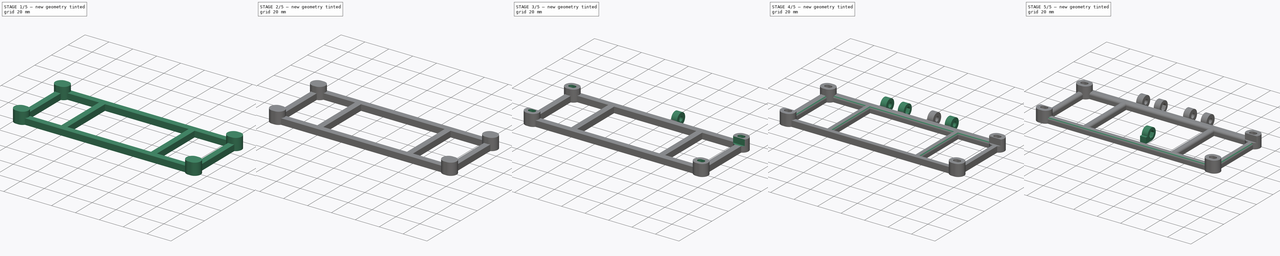
[diagram: build sequence overview — one tinted view per stage of 5, left to right]
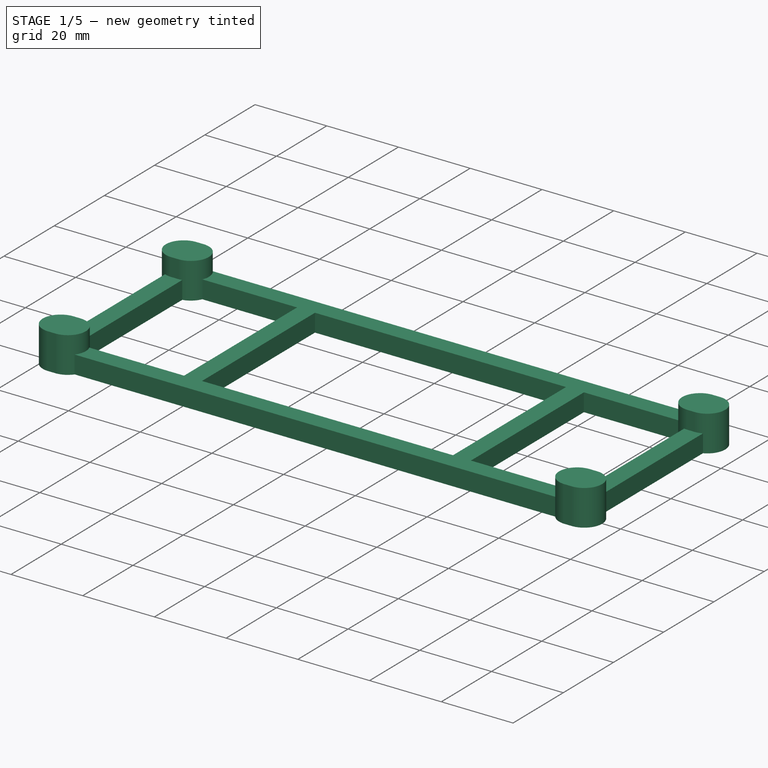
[diagram: stage 1 of 5 — iso view after this stage's code; geometry added in this stage tinted green]
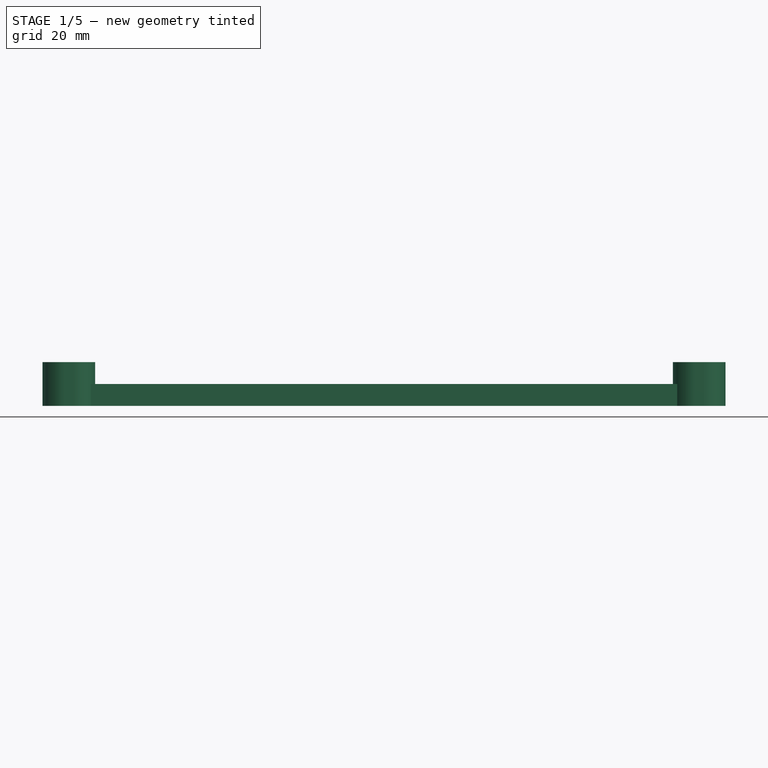
[diagram: stage 1 of 5 — front view after this stage's code; geometry added in this stage tinted green]
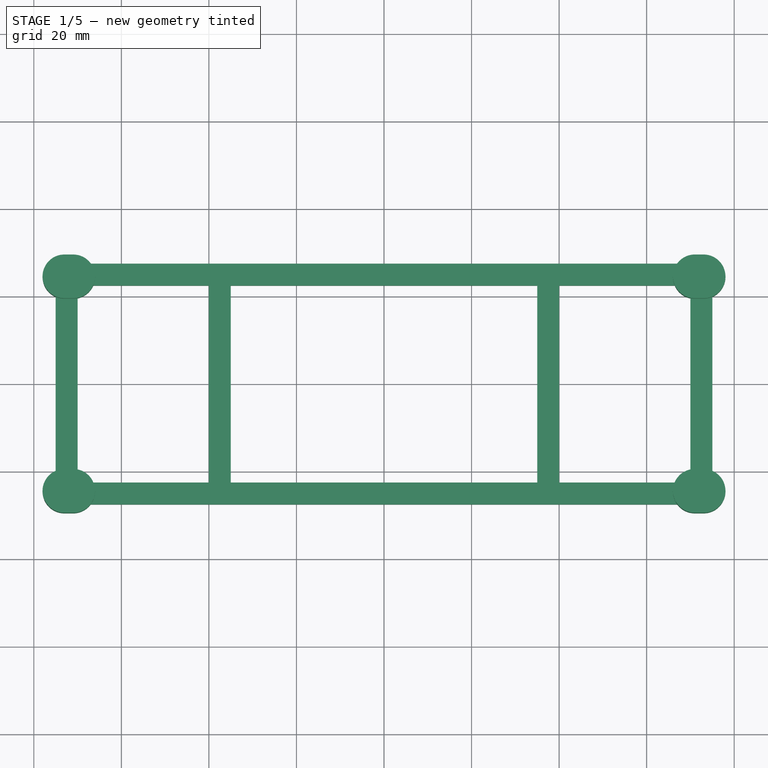
[diagram: stage 1 of 5 — top view after this stage's code; geometry added in this stage tinted green]
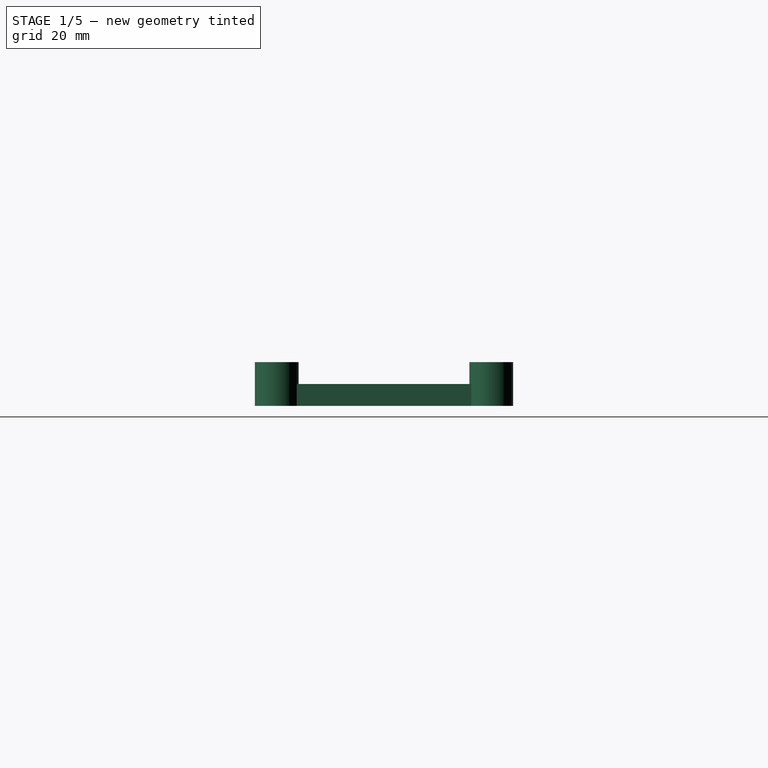
[diagram: stage 1 of 5 — right view after this stage's code; geometry added in this stage tinted green]
FCSTD DOCUMENT  (FreeCAD 0.14R3702 (Git))
Label: lcd-holder
License: CC-BY 3.0
LicenseURL: http://creativecommons.org/licenses/by/3.0/
objects: Sketcher::SketchObject×9, Part::Feature×7, PartDesign::Pocket×6, Part::MultiFuse×4, PartDesign::Pad×3, PartDesign::Mirrored×2, Part::Fillet×2, Part::Mirroring×1
note: 43 computed .brp shape members not serialized (recipe doc carries the construction recipe); baked Part::Feature solids carry a one-line shape summary decoded from their .brp

FEATURE [Sketcher::SketchObject] Sketch  label="main-body-sketch"
  sketch-geometry (4):
    g0: LineSegment StartX=-75 StartY=27.5 StartZ=0 EndX=75 EndY=27.5 EndZ=0
    g1: LineSegment StartX=75 StartY=27.5 StartZ=0 EndX=75 EndY=-27.5 EndZ=0
    g2: LineSegment StartX=75 StartY=-27.5 StartZ=0 EndX=-75 EndY=-27.5 EndZ=0
    g3: LineSegment StartX=-75 StartY=-27.5 StartZ=0 EndX=-75 EndY=27.5 EndZ=0
  constraints (11):
    c: Coincident(g0,g1)
    c: Coincident(g1,g2)
    c: Coincident(g2,g3)
    c: Coincident(g3,g0)
    c: Horizontal(g0)
    c: Horizontal(g2)
    c: Vertical(g1)
    c: Vertical(g3)
    c: DistanceX(g0) = 150
    c: DistanceY(g3) = 55
    c: Symmetric(g0,g1,g-1)
FEATURE [PartDesign::Pad] Pad  label="main-body"
  Length = 5
  Length2 = 100
  Sketch = -> Sketch
  Type = 0
FEATURE [Sketcher::SketchObject] Sketch001  label="corner-body-sketch"
  Placement = pos=(-73,24.5,0) rot=(0,0,1;0rad)
  sketch-geometry (4):
    g0: ArcOfCircle CenterX=0 CenterY=0 CenterZ=0 NormalX=0 NormalY=0 NormalZ=1 Radius=5 StartAngle=1.57079 EndAngle=4.71239
    g1: ArcOfCircle CenterX=2 CenterY=0 CenterZ=0 NormalX=0 NormalY=0 NormalZ=1 Radius=5 StartAngle=4.71239 EndAngle=7.85398
    g2: LineSegment StartX=2.23301e-05 StartY=-5 StartZ=0 EndX=2.00001 EndY=-5 EndZ=0
    g3: LineSegment StartX=3.06586e-05 StartY=5 StartZ=0 EndX=2.00002 EndY=5 EndZ=0
  constraints (13):
    c: Tangent(g0,g2)
    c: Tangent(g0,g3)
    c: Tangent(g1,g2)
    c: Tangent(g1,g3)
    c: Coincident(g0,g3)
    c: Coincident(g0,g2)
    c: Coincident(g2,g1)
    c: Coincident(g3,g1)
    c: Horizontal(g2)
    c: Equal(g0,g1)
    c: Radius(g0) = 5
    c: DistanceX(g0,g1) = 2
    c: Coincident(g0,g-1)
FEATURE [PartDesign::Pad] Pad001  label="corner-body-1"
  Length = 10
  Length2 = 100
  Placement = pos=(-73,24.5,0) rot=(0,0,1;0rad)
  Sketch = -> Sketch001
  Type = 0
FEATURE [Part::Feature] Pad001001  label="corner-body-002"
  Placement = pos=(71,24.5,0) rot=(0,0,1;0rad)
  shape: bbox 12 x 10 x 10 mm, 6 faces (baked)
FEATURE [Part::Feature] Pad001002  label="corner-body-003"
  Placement = pos=(71,-24.5,0) rot=(0,0,1;0rad)
  shape: bbox 12 x 10 x 10 mm, 6 faces (baked)
FEATURE [Part::Feature] Pad001003  label="corner-body-004"
  Placement = pos=(-73,-24.5,0) rot=(0,0,1;0rad)
  shape: bbox 12 x 10 x 10 mm, 6 faces (baked)
FEATURE [Part::MultiFuse] Fusion  label="corners-body"
  Shapes = -> [Pad001,Pad001002,Pad001001,Pad001003]
FEATURE [Sketcher::SketchObject] Sketch002  label="cutout-1-sketch"
  Placement = pos=(0,0,5) rot=(0,0,1;0rad)
  Support = -> Pad [Face6]
  sketch-geometry (12):
    g0: LineSegment StartX=-70 StartY=22.5 StartZ=0 EndX=-40 EndY=22.5 EndZ=0
    g1: LineSegment StartX=-40 StartY=22.5 StartZ=0 EndX=-40 EndY=-22.5 EndZ=0
    g2: LineSegment StartX=-40 StartY=-22.5 StartZ=0 EndX=-70 EndY=-22.5 EndZ=0
    g3: LineSegment StartX=-70 StartY=-22.5 StartZ=0 EndX=-70 EndY=22.5 EndZ=0
    g4: LineSegment StartX=-35 StartY=22.5 StartZ=0 EndX=35 EndY=22.5 EndZ=0
    g5: LineSegment StartX=35 StartY=22.5 StartZ=0 EndX=35 EndY=-22.5 EndZ=0
    g6: LineSegment StartX=35 StartY=-22.5 StartZ=0 EndX=-35 EndY=-22.5 EndZ=0
    g7: LineSegment StartX=-35 StartY=-22.5 StartZ=0 EndX=-35 EndY=22.5 EndZ=0
    g8: LineSegment StartX=40 StartY=22.5 StartZ=0 EndX=70 EndY=22.5 EndZ=0
    g9: LineSegment StartX=70 StartY=22.5 StartZ=0 EndX=70 EndY=-22.5 EndZ=0
    g10: LineSegment StartX=70 StartY=-22.5 StartZ=0 EndX=40 EndY=-22.5 EndZ=0
    g11: LineSegment StartX=40 StartY=-22.5 StartZ=0 EndX=40 EndY=22.5 EndZ=0
  constraints (34):
    c: Coincident(g0,g1)
    c: Coincident(g1,g2)
    c: Coincident(g2,g3)
    c: Coincident(g3,g0)
    c: Horizontal(g0)
    c: Horizontal(g2)
    c: Vertical(g1)
    c: Vertical(g3)
    c: Symmetric(g0,g2,g-1)
    c: Coincident(g4,g5)
    c: Coincident(g5,g6)
    c: Coincident(g6,g7)
    c: Coincident(g7,g4)
    c: Horizontal(g6)
    c: Vertical(g5)
    c: Vertical(g7)
    c: Coincident(g8,g9)
    c: Coincident(g9,g10)
    c: Coincident(g10,g11)
    c: Coincident(g11,g8)
    c: Horizontal(g8)
    c: Horizontal(g10)
    c: Vertical(g9)
    c: Vertical(g11)
    c: PointOnObject(g0,g4)
    c: Symmetric(g4,g6,g-1)
    c: Symmetric(g4,g4,g-2)
    c: Symmetric(g8,g10,g-1)
    c: Symmetric(g0,g8,g-2)
    c: Symmetric(g0,g8,g-2)
    c: DistanceX(g0) = 30
    c: DistanceY(g3) = 45
    c: DistanceX(g4) = 70
    c: DistanceX(g1,g6) = 5
FEATURE [PartDesign::Pocket] Pocket  label="cutout-1"
  Length = 5
  Sketch = -> Sketch002
  Type = 1
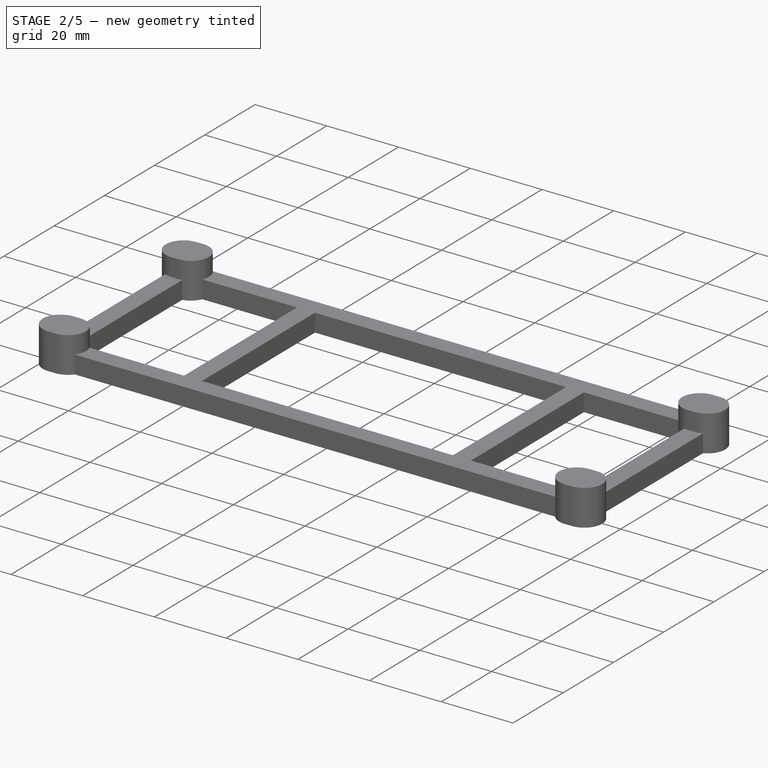
[diagram: stage 2 of 5 — iso view after this stage's code; geometry added in this stage tinted green]
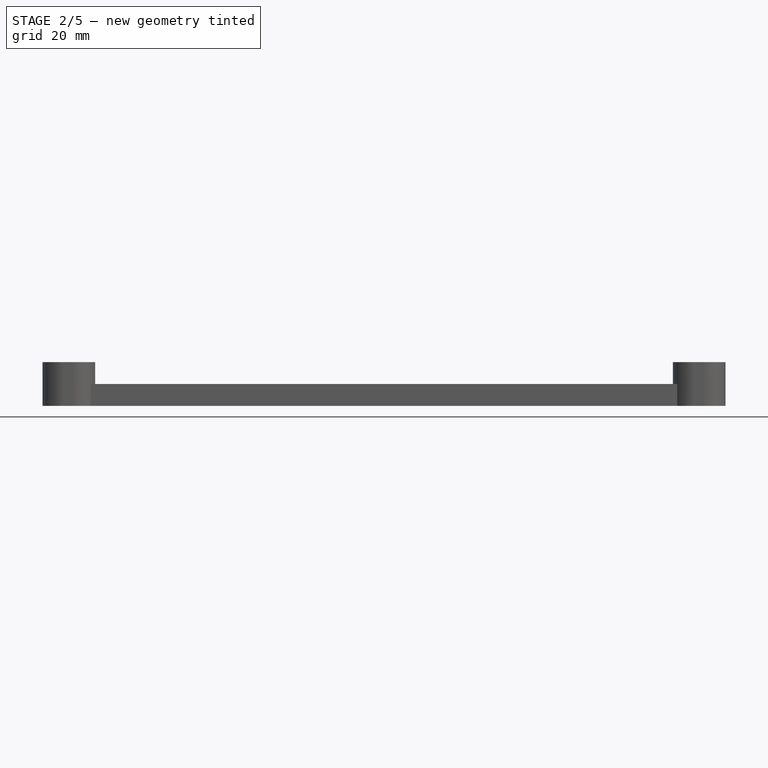
[diagram: stage 2 of 5 — front view after this stage's code; geometry added in this stage tinted green]
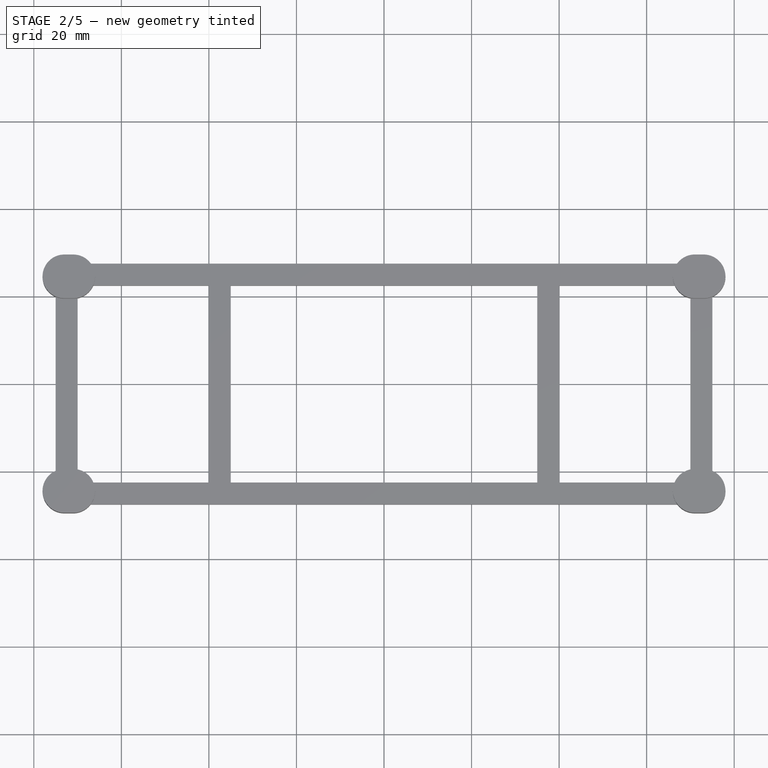
[diagram: stage 2 of 5 — top view after this stage's code; geometry added in this stage tinted green]
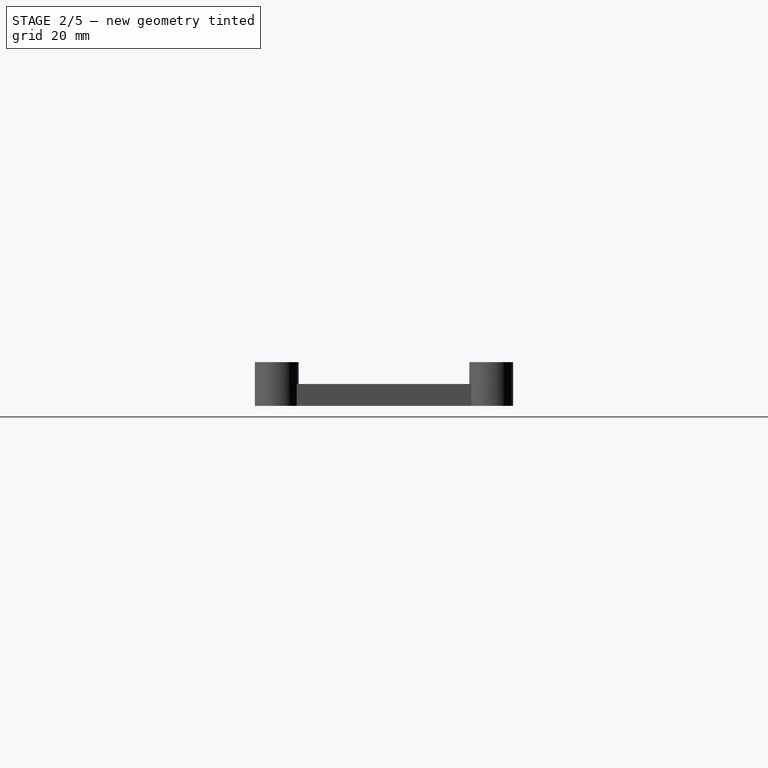
[diagram: stage 2 of 5 — right view after this stage's code; geometry added in this stage tinted green]
FEATURE [Part::MultiFuse] Fusion001  label="main-body-2"
  Shapes = -> [Pocket,Fusion]
FEATURE [Sketcher::SketchObject] Sketch003  label="nut-hole-1-sketch"
  Placement = pos=(0,0,0) rot=(1,0,0;3.14159rad)
  Support = -> Fusion001 [Face40]
  sketch-geometry (22):
    g0: LineSegment [constr] StartX=72 StartY=27.55 StartZ=0 EndX=72 EndY=21.45 EndZ=0
    g1: LineSegment StartX=71 StartY=27.55 StartZ=0 EndX=73 EndY=27.55 EndZ=0
    g2: LineSegment [constr] StartX=68.3153 StartY=24.5 StartZ=0 EndX=75.6847 EndY=24.5 EndZ=0
    g3: LineSegment StartX=68.3153 StartY=26 StartZ=0 EndX=68.3153 EndY=23 EndZ=0
    g4: LineSegment StartX=68.3153 StartY=26 StartZ=0 EndX=71 EndY=27.55 EndZ=0
    g5: GeomPoint [constr] X=72 Y=24.5 Z=0
    g6: LineSegment StartX=71 StartY=21.45 StartZ=0 EndX=73 EndY=21.45 EndZ=0
    g7: LineSegment StartX=68.3153 StartY=23 StartZ=0 EndX=71 EndY=21.45 EndZ=0
    g8: LineSegment StartX=75.6847 StartY=26 StartZ=0 EndX=75.6847 EndY=23 EndZ=0
    g9: LineSegment StartX=73 StartY=27.55 StartZ=0 EndX=75.6847 EndY=26 EndZ=0
    g10: LineSegment StartX=73 StartY=21.45 StartZ=0 EndX=75.6847 EndY=23 EndZ=0
    g11: LineSegment StartX=68.3153 StartY=-23 StartZ=0 EndX=71 EndY=-21.45 EndZ=0
    g12: LineSegment StartX=71 StartY=-21.45 StartZ=0 EndX=73 EndY=-21.45 EndZ=0
    g13: LineSegment StartX=73 StartY=-21.45 StartZ=0 EndX=75.6847 EndY=-23 EndZ=0
    g14: LineSegment StartX=75.6847 StartY=-23 StartZ=0 EndX=75.6847 EndY=-26 EndZ=0
    g15: LineSegment StartX=75.6847 StartY=-26 StartZ=0 EndX=73 EndY=-27.55 EndZ=0
    g16: LineSegment StartX=73 StartY=-27.55 StartZ=0 EndX=71 EndY=-27.55 EndZ=0
    g17: LineSegment StartX=71 StartY=-27.55 StartZ=0 EndX=68.3153 EndY=-26 EndZ=0
    g18: LineSegment StartX=68.3153 StartY=-26 StartZ=0 EndX=68.3153 EndY=-23 EndZ=0
    g19: LineSegment [constr] StartX=72 StartY=-21.45 StartZ=0 EndX=72 EndY=-27.55 EndZ=0
    g20: LineSegment [constr] StartX=68.3153 StartY=-24.5 StartZ=0 EndX=75.6847 EndY=-24.5 EndZ=0
    g21: GeomPoint [constr] X=72 Y=-24.5 Z=0
  constraints (62):
    c: Horizontal(g1)
    c: PointOnObject(g0,g1)
    c: Symmetric(g1,g1,g0)
    c: Symmetric(g2,g2,g0)
    c: PointOnObject(g2,g3)
    c: Vertical(g3)
    c: Coincident(g4,g3)
    c: Coincident(g4,g1)
    c: Angle(g2,g4) = 0.523599
    c: Symmetric(g3,g3,g2)
    c: PointOnObject(g5,g0)
    c: PointOnObject(g5,g2)
    c: DistanceX(g-1,g5) = 72
    c: DistanceY(g-1,g5) = 24.5
    c: DistanceY(g3) = -3
    c: DistanceX(g1) = 2
    c: PointOnObject(g0,g6)
    c: Symmetric(g0,g0,g2)
    c: Symmetric(g6,g1,g2)
    c: Coincident(g7,g3)
    c: Coincident(g7,g6)
    c: PointOnObject(g2,g8)
    c: Vertical(g8)
    c: Symmetric(g8,g3,g0)
    c: Coincident(g9,g1)
    c: Coincident(g9,g8)
    c: Symmetric(g6,g1,g2)
    c: Symmetric(g8,g3,g0)
    c: Coincident(g10,g8)
    c: Coincident(g6,g10)
    c: DistanceY(g0) = -6.1
    c: Coincident(g11,g12)
    c: Coincident(g12,g13)
    c: Coincident(g13,g14)
    c: Coincident(g14,g15)
    c: Coincident(g15,g16)
    c: Coincident(g16,g17)
    c: Coincident(g17,g18)
    c: Coincident(g18,g11)
    c: Horizontal(g12)
    c: Horizontal(g16)
    c: Vertical(g14)
    c: Vertical(g18)
    c: Equal(g18,g14)
    c: Equal(g12,g16)
    c: Equal(g16,g6)
    c: Equal(g18,g8)
    c: Parallel(g11,g15)
    c: Parallel(g15,g10)
    c: Parallel(g17,g13)
    c: Parallel(g13,g7)
    c: PointOnObject(g13,g8)
    c: PointOnObject(g11,g3)
    c: PointOnObject(g19,g12)
    c: Symmetric(g11,g12,g19)
    c: PointOnObject(g19,g16)
    c: PointOnObject(g20,g18)
    c: PointOnObject(g20,g14)
    c: Symmetric(g11,g17,g20)
    c: PointOnObject(g21,g19)
    c: PointOnObject(g21,g20)
    c: Symmetric(g21,g5,g-1)
FEATURE [PartDesign::Pocket] Pocket001  label="nut-hole-1"
  Length = 5
  Sketch = -> Sketch003
  Type = 0
FEATURE [PartDesign::Mirrored] Mirrored
  MirrorPlane = -> Sketch003 [V_Axis]
  Originals = -> [Pocket001]
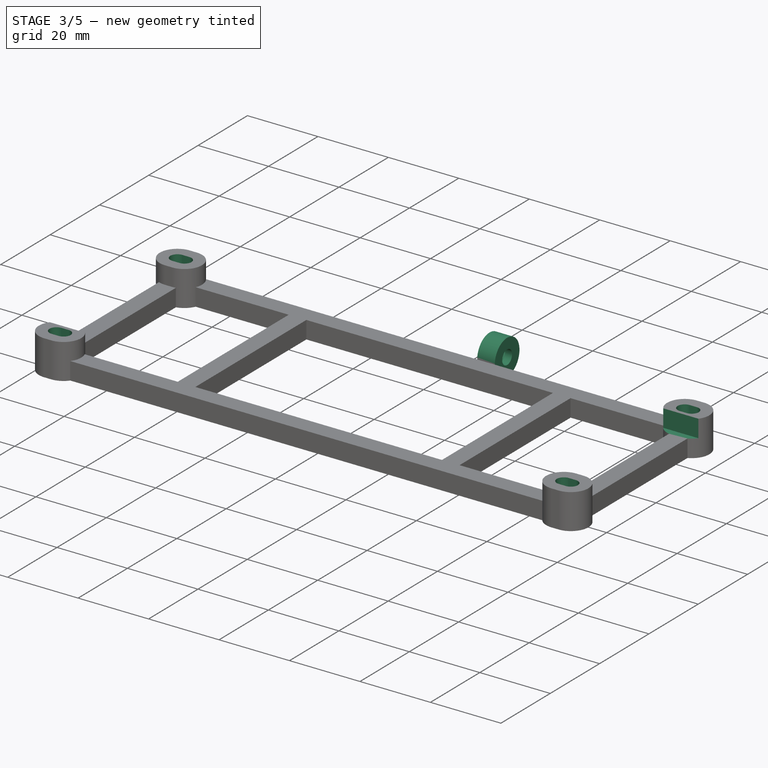
[diagram: stage 3 of 5 — iso view after this stage's code; geometry added in this stage tinted green]
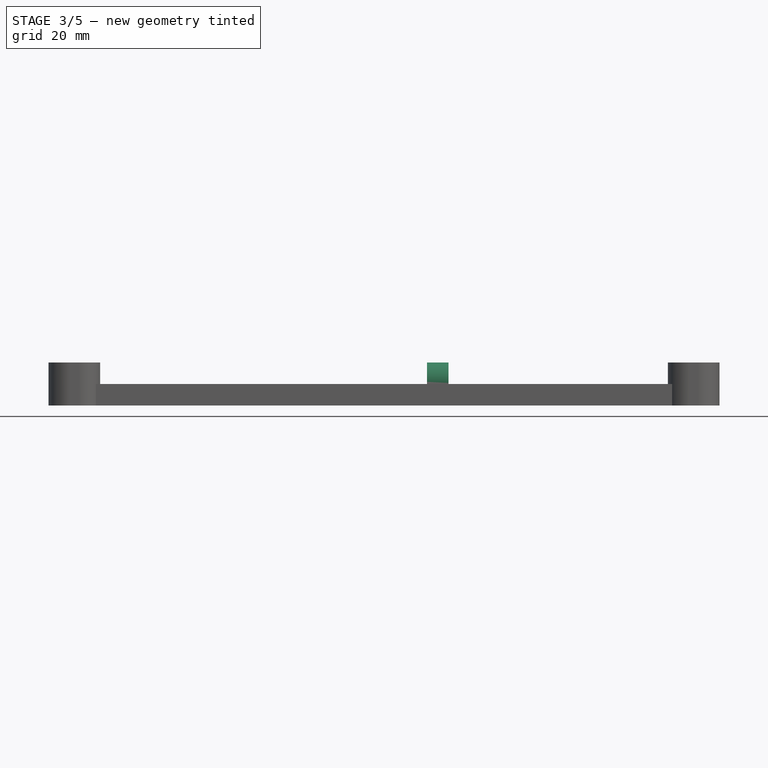
[diagram: stage 3 of 5 — front view after this stage's code; geometry added in this stage tinted green]
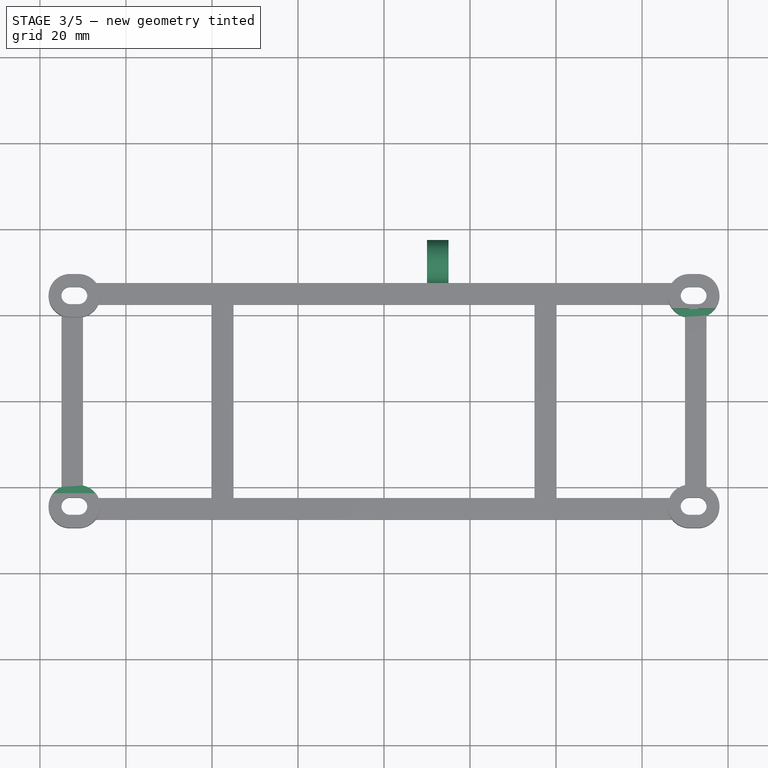
[diagram: stage 3 of 5 — top view after this stage's code; geometry added in this stage tinted green]
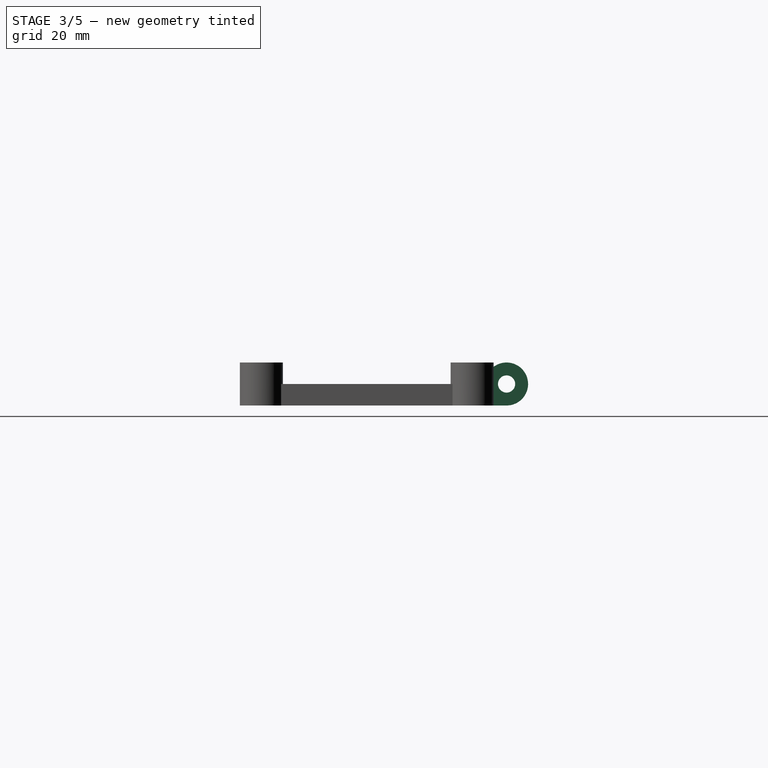
[diagram: stage 3 of 5 — right view after this stage's code; geometry added in this stage tinted green]
FEATURE [Sketcher::SketchObject] Sketch004  label="oval-drills-sketch"
  Placement = pos=(0,0,10) rot=(0,0,1;0rad)
  Support = -> Mirrored [Face65]
  sketch-geometry (8):
    g0: ArcOfCircle CenterX=-73 CenterY=24.5 CenterZ=0 NormalX=0 NormalY=0 NormalZ=1 Radius=2 StartAngle=1.5708 EndAngle=4.71239
    g1: ArcOfCircle CenterX=-71 CenterY=24.5 CenterZ=0 NormalX=0 NormalY=0 NormalZ=1 Radius=2 StartAngle=4.71239 EndAngle=7.85398
    g2: LineSegment StartX=-73 StartY=22.5 StartZ=0 EndX=-71 EndY=22.5 EndZ=0
    g3: LineSegment StartX=-73 StartY=26.5 StartZ=0 EndX=-71 EndY=26.5 EndZ=0
    g4: ArcOfCircle CenterX=-73 CenterY=-24.5 CenterZ=0 NormalX=0 NormalY=0 NormalZ=1 Radius=2 StartAngle=1.57079 EndAngle=4.71239
    g5: ArcOfCircle CenterX=-71 CenterY=-24.5 CenterZ=0 NormalX=0 NormalY=0 NormalZ=1 Radius=2 StartAngle=4.71239 EndAngle=7.85398
    g6: LineSegment StartX=-73 StartY=-26.5 StartZ=0 EndX=-71 EndY=-26.5 EndZ=0
    g7: LineSegment StartX=-73 StartY=-22.5 StartZ=0 EndX=-71 EndY=-22.5 EndZ=0
  constraints (27):
    c: Tangent(g0,g2)
    c: Tangent(g0,g3)
    c: Tangent(g1,g2)
    c: Tangent(g1,g3)
    c: Coincident(g0,g3)
    c: Coincident(g0,g2)
    c: Coincident(g2,g1)
    c: Coincident(g3,g1)
    c: Horizontal(g2)
    c: Equal(g0,g1)
    c: DistanceX(g-1,g0) = -73
    c: DistanceY(g-1,g0) = 24.5
    c: Radius(g0) = 2
    c: DistanceX(g3) = 2
    c: Tangent(g4,g6)
    c: Tangent(g4,g7)
    c: Tangent(g5,g6)
    c: Tangent(g5,g7)
    c: Coincident(g4,g7)
    c: Coincident(g4,g6)
    c: Coincident(g6,g5)
    c: Coincident(g7,g5)
    c: Horizontal(g6)
    c: Equal(g4,g5)
    c: Equal(g7,g2)
    c: Equal(g4,g0)
    c: Symmetric(g4,g0,g-1)
FEATURE [PartDesign::Pocket] Pocket002  label="oval-drills"
  Length = 5
  Sketch = -> Sketch004
  Type = 1
FEATURE [PartDesign::Mirrored] Mirrored001
  MirrorPlane = -> Sketch004 [V_Axis]
  Originals = -> [Pocket002]
FEATURE [Part::Feature] Pocket003004  label="ear-with-1"
  Placement = pos=(-12.5,32.5,5) rot=(0.57735,0.57735,0.57735;2.0944rad)
  shape: bbox 5 x 12 x 10 mm, 14 faces (baked)
FEATURE [Part::Mirroring] Part__Mirroring  label="ear-with-1 (Mirror #1)"
  Base = (0,0,0)
  Normal = (1,0,0)
  Source = -> Pocket003004
FEATURE [Sketcher::SketchObject] Sketch008  label="cutout-2-sketch"
  ExternalGeometry = -> [Mirrored001]
  Placement = pos=(0,0,10) rot=(0,0,1;0rad)
  Support = -> Mirrored001 [Face70]
  sketch-geometry (8):
    g0: LineSegment StartX=-80 StartY=-16.5 StartZ=0 EndX=-65 EndY=-16.5 EndZ=0
    g1: LineSegment StartX=-65 StartY=-16.5 StartZ=0 EndX=-65 EndY=-21.5 EndZ=0
    g2: LineSegment StartX=-65 StartY=-21.5 StartZ=0 EndX=-80 EndY=-21.5 EndZ=0
    g3: LineSegment StartX=-80 StartY=-21.5 StartZ=0 EndX=-80 EndY=-16.5 EndZ=0
    g4: LineSegment StartX=65 StartY=21.5 StartZ=0 EndX=80 EndY=21.5 EndZ=0
    g5: LineSegment StartX=80 StartY=21.5 StartZ=0 EndX=80 EndY=16.5 EndZ=0
    g6: LineSegment StartX=80 StartY=16.5 StartZ=0 EndX=65 EndY=16.5 EndZ=0
    g7: LineSegment StartX=65 StartY=16.5 StartZ=0 EndX=65 EndY=21.5 EndZ=0
  constraints (24):
    c: Coincident(g0,g1)
    c: Coincident(g1,g2)
    c: Coincident(g2,g3)
    c: Coincident(g3,g0)
    c: Horizontal(g0)
    c: Horizontal(g2)
    c: Vertical(g1)
    c: Vertical(g3)
    c: DistanceX(g2) = -15
    c: DistanceY(g3) = 5
    c: DistanceX(g-3,g2) = -7
    c: Coincident(g4,g5)
    c: Coincident(g5,g6)
    c: Coincident(g6,g7)
    c: Coincident(g7,g4)
    c: Horizontal(g4)
    c: Horizontal(g6)
    c: Vertical(g5)
    c: Vertical(g7)
    c: Equal(g1,g7)
    c: Equal(g6,g0)
    c: DistanceX(g-4,g4) = 7
    c: DistanceY(g-3,g1) = 1
    c: DistanceY(g-4,g4) = -1
FEATURE [PartDesign::Pocket] Pocket003005  label="cutout-2"
  Length = 5
  Sketch = -> Sketch008
  Type = 0
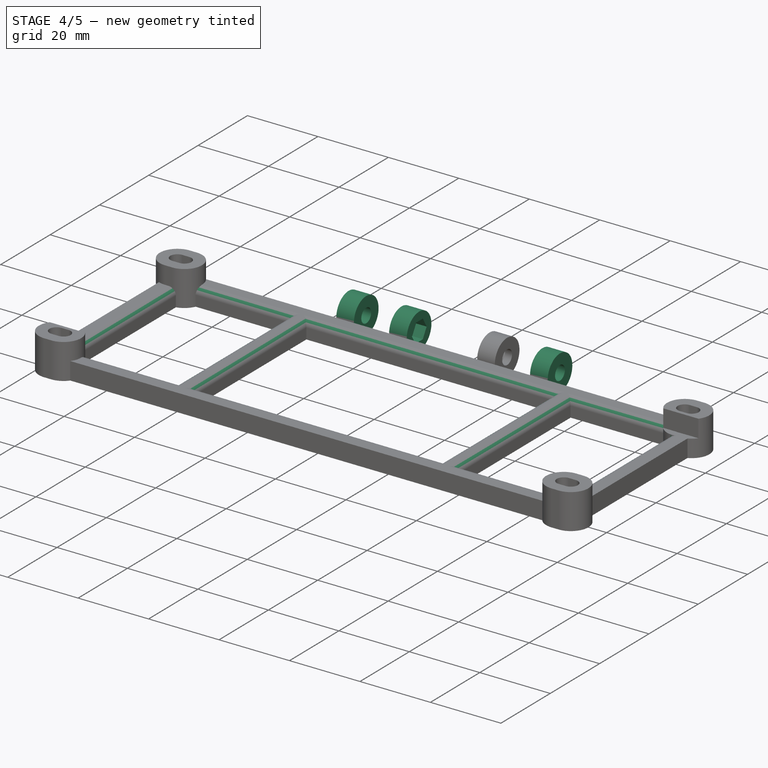
[diagram: stage 4 of 5 — iso view after this stage's code; geometry added in this stage tinted green]
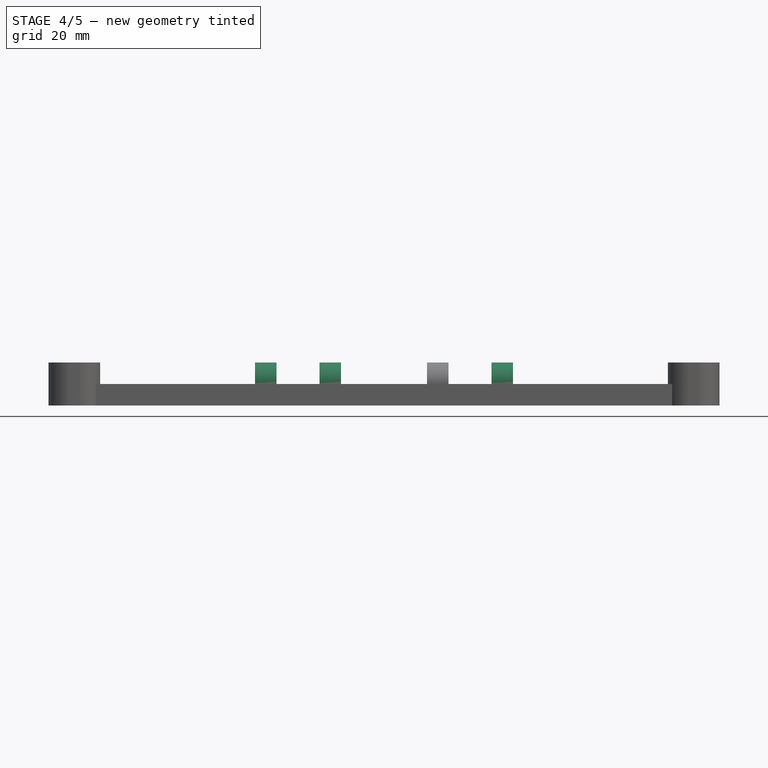
[diagram: stage 4 of 5 — front view after this stage's code; geometry added in this stage tinted green]
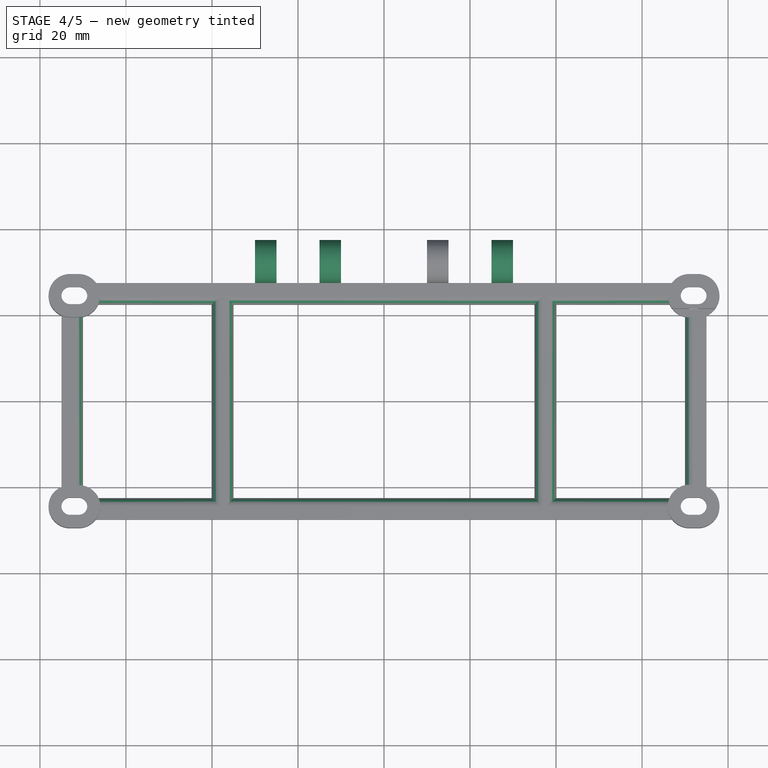
[diagram: stage 4 of 5 — top view after this stage's code; geometry added in this stage tinted green]
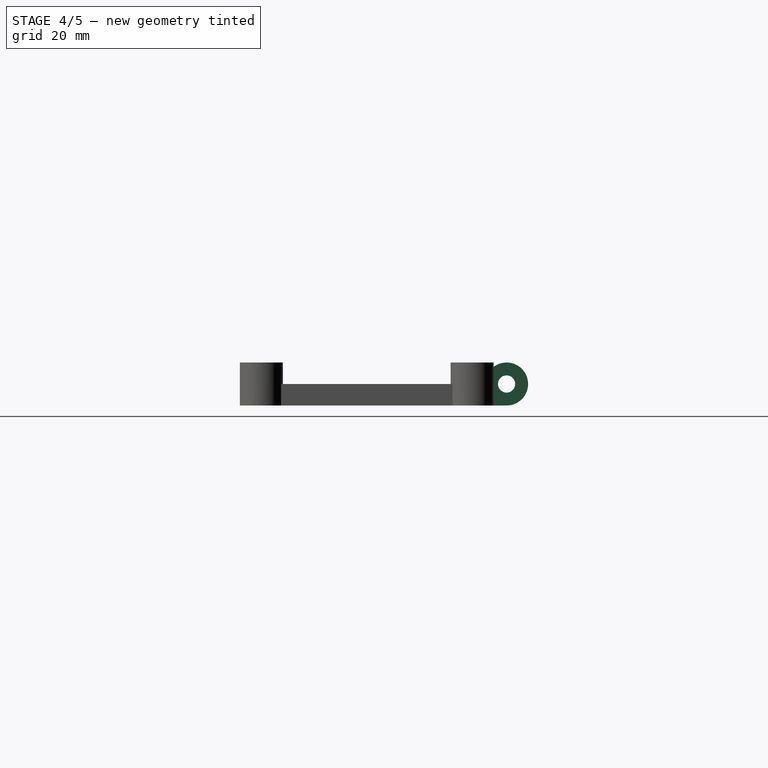
[diagram: stage 4 of 5 — right view after this stage's code; geometry added in this stage tinted green]
FEATURE [Part::MultiFuse] Fusion002  label="ears"
  Shapes = -> [Pocket003001,Pocket003002,Part__Mirroring,Pocket003004]
FEATURE [Part::MultiFuse] Fusion003  label="lcd-holder-1"
  Shapes = -> [Fusion002,Pocket003005]
FEATURE [Part::Fillet] Fillet  label="Inner-edges-rounded"
  Base = -> Fusion003
  Edges = 12 edges r=2: [Edge29,Edge88,Edge92,Edge94,Edge117,Edge120,Edge123,Edge171,Edge349,Edge350,Edge351,Edge352]
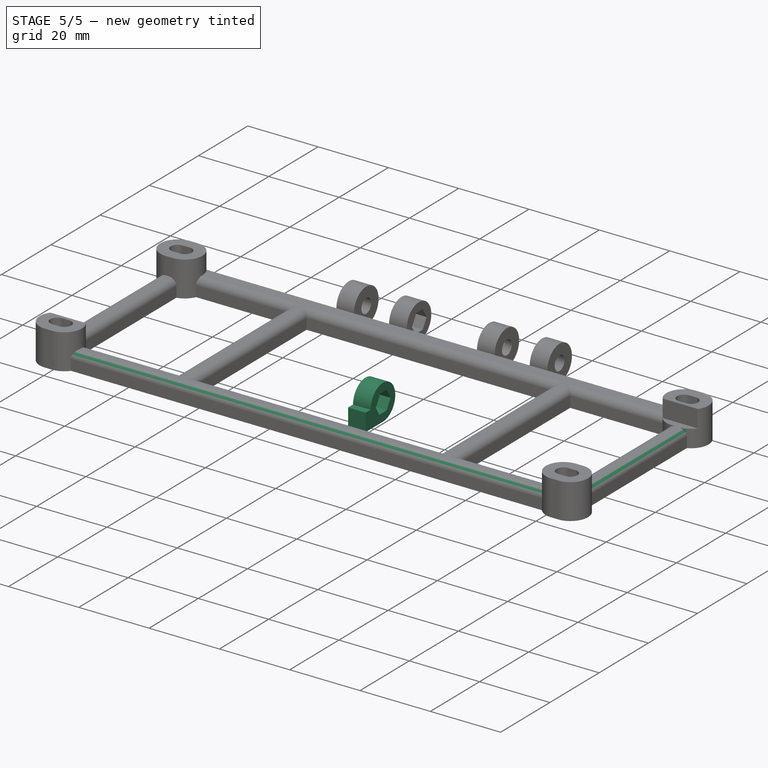
[diagram: stage 5 of 5 — iso view after this stage's code; geometry added in this stage tinted green]
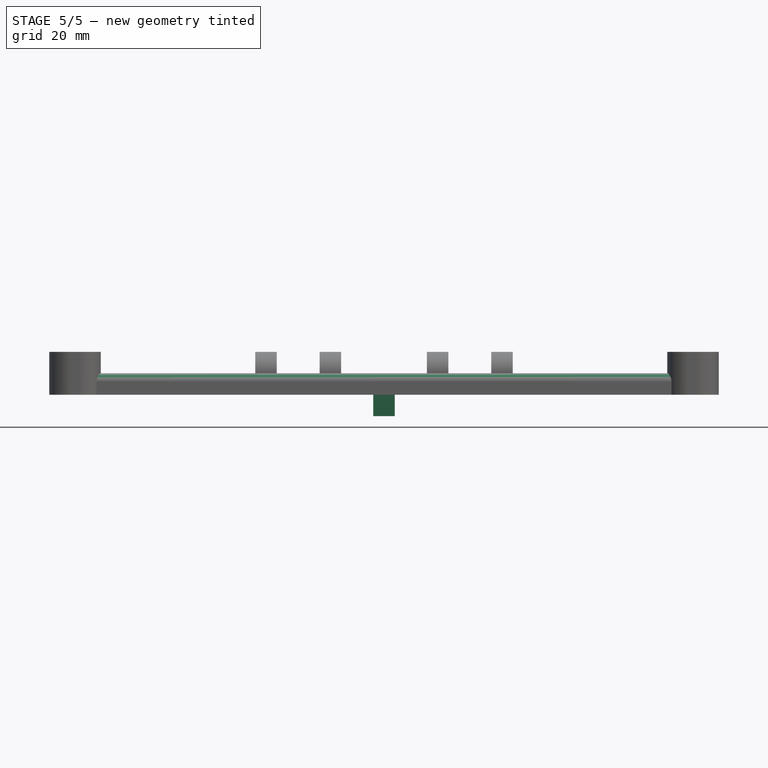
[diagram: stage 5 of 5 — front view after this stage's code; geometry added in this stage tinted green]
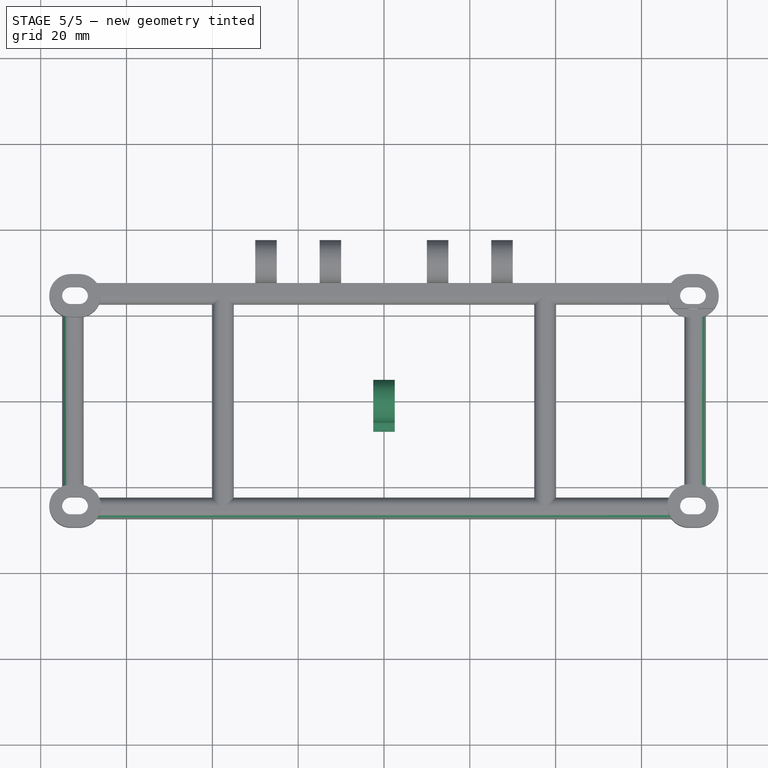
[diagram: stage 5 of 5 — top view after this stage's code; geometry added in this stage tinted green]
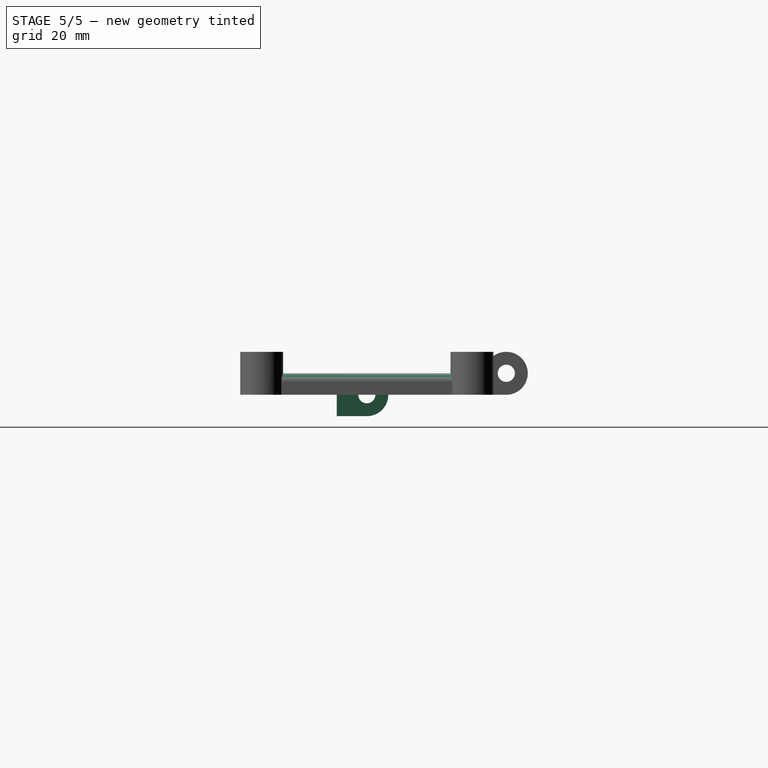
[diagram: stage 5 of 5 — right view after this stage's code; geometry added in this stage tinted green]
FEATURE [Sketcher::SketchObject] Sketch005  label="ear-sketch"
  Placement = pos=(0,0,0) rot=(0.57735,0.57735,0.57735;2.0944rad)
  sketch-geometry (5):
    g0: Circle [constr] CenterX=0 CenterY=0 CenterZ=0 NormalX=0 NormalY=0 NormalZ=1 Radius=5
    g1: LineSegment StartX=-5 StartY=0 StartZ=0 EndX=-7 EndY=0 EndZ=0
    g2: LineSegment StartX=-7 StartY=0 StartZ=0 EndX=-7 EndY=-5 EndZ=0
    g3: LineSegment StartX=-7 StartY=-5 StartZ=0 EndX=1.76104e-05 EndY=-5 EndZ=0
    g4: ArcOfCircle CenterX=0 CenterY=0 CenterZ=0 NormalX=0 NormalY=0 NormalZ=1 Radius=5 StartAngle=4.71239 EndAngle=9.42478
  constraints (14):
    c: Radius(g0) = 5
    c: Coincident(g1,g2)
    c: Coincident(g2,g3)
    c: Horizontal(g3)
    c: Vertical(g2)
    c: Horizontal(g1)
    c: PointOnObject(g0,g1)
    c: PointOnObject(g1,g0)
    c: Coincident(g4,g0)
    c: Coincident(g4,g1)
    c: Coincident(g4,g3)
    c: DistanceX(g1) = -2
    c: DistanceY(g2) = -5
    c: Coincident(g0,g-1)
FEATURE [PartDesign::Pad] Pad001004  label="ear-main-body"
  Length = 5
  Length2 = 100
  Midplane = true
  Placement = pos=(0,0,0) rot=(0.57735,0.57735,0.57735;2.0944rad)
  Sketch = -> Sketch005
  Type = 0
FEATURE [Sketcher::SketchObject] Sketch006  label="ear-drill-sketch"
  Placement = pos=(2.5,0,0) rot=(0.57735,0.57735,0.57735;2.0944rad)
  Support = -> Pad001004 [Face6]
  sketch-geometry (1):
    g0: Circle CenterX=0 CenterY=0 CenterZ=0 NormalX=0 NormalY=0 NormalZ=1 Radius=2
  constraints (2):
    c: Radius(g0) = 2
    c: Coincident(g0,g-1)
FEATURE [PartDesign::Pocket] Pocket003  label="ear-orig"
  Length = 5
  Placement = pos=(0,0,0) rot=(0.57735,0.57735,0.57735;2.0944rad)
  Sketch = -> Sketch006
  Type = 1
FEATURE [Part::Feature] Pocket003001  label="ear-3"
  Placement = pos=(-27.5,32.5,5) rot=(0.57735,0.57735,0.57735;2.0944rad)
  shape: bbox 5 x 12 x 10 mm, 7 faces (baked)
FEATURE [Part::Feature] Pocket003002  label="ear-004"
  Placement = pos=(27.5,32.5,5) rot=(0.57735,0.57735,0.57735;2.0944rad)
  shape: bbox 5 x 12 x 10 mm, 7 faces (baked)
FEATURE [Sketcher::SketchObject] Sketch007  label="hexagon-cutout-sketch"
  Placement = pos=(2.5,0,0) rot=(0.57735,0.57735,0.57735;2.0944rad)
  Support = -> Pocket003 [Face5]
  sketch-geometry (9):
    g0: LineSegment StartX=-3.05996 StartY=0 StartZ=0 EndX=-1.52998 EndY=2.65 EndZ=0
    g1: LineSegment StartX=-1.52998 StartY=2.65 StartZ=0 EndX=1.52998 EndY=2.65 EndZ=0
    g2: LineSegment [constr] StartX=0 StartY=2.65 StartZ=0 EndX=0 EndY=0 EndZ=0
    g3: LineSegment [constr] StartX=-3.05996 StartY=0 StartZ=0 EndX=0 EndY=0 EndZ=0
    g4: LineSegment [constr] StartX=-1.52998 StartY=2.65 StartZ=0 EndX=0 EndY=0 EndZ=0
    g5: LineSegment StartX=-3.05996 StartY=0 StartZ=0 EndX=-1.52998 EndY=-2.65 EndZ=0
    g6: LineSegment StartX=-1.52998 StartY=-2.65 StartZ=0 EndX=1.52998 EndY=-2.65 EndZ=0
    g7: LineSegment StartX=1.52998 StartY=-2.65 StartZ=0 EndX=3.05996 EndY=0 EndZ=0
    g8: LineSegment StartX=3.05996 StartY=0 StartZ=0 EndX=1.52998 EndY=2.65 EndZ=0
  constraints (22):
    c: Coincident(g0,g1)
    c: Vertical(g2)
    c: Horizontal(g3)
    c: Coincident(g3,g2)
    c: Symmetric(g0,g1,g2)
    c: PointOnObject(g2,g1)
    c: Coincident(g3,g0)
    c: Coincident(g4,g2)
    c: Coincident(g4,g0)
    c: Angle(g4,g3) = 1.0472
    c: Equal(g3,g4)
    c: Coincident(g5,g6)
    c: Horizontal(g6)
    c: Coincident(g6,g7)
    c: Coincident(g7,g8)
    c: Coincident(g8,g1)
    c: Coincident(g5,g0)
    c: Symmetric(g7,g0,g2)
    c: Symmetric(g5,g0,g3)
    c: Symmetric(g6,g1,g3)
    c: DistanceY(g6,g1) = 5.3
    c: Coincident(g2,g-1)
FEATURE [PartDesign::Pocket] Pocket003003  label="ear-with-nut"
  Length = 3
  Placement = pos=(0,0,0) rot=(0.57735,0.57735,0.57735;2.0944rad)
  Sketch = -> Sketch007
  Type = 0
FEATURE [Part::Fillet] Fillet001
  Base = -> Fillet
  Edges = 3 edges r=2: [Edge5,Edge144,Edge246]
FEATURE [Part::Feature] Fillet001001  label="lcd-holder-final"
  shape: bbox 156 x 67 x 10 mm, 141 faces (baked)
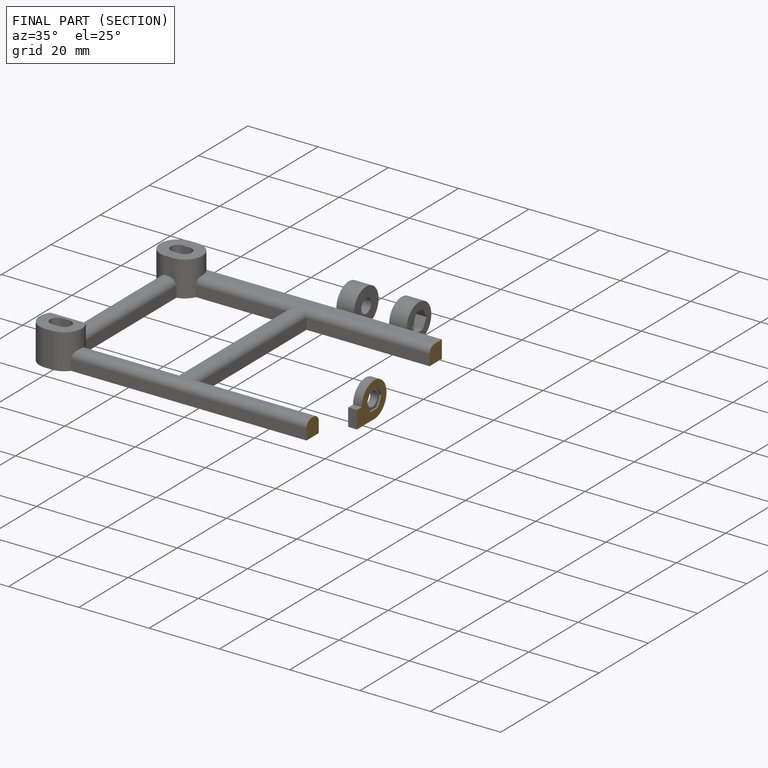
[diagram: finished part — half-section view (interior)]
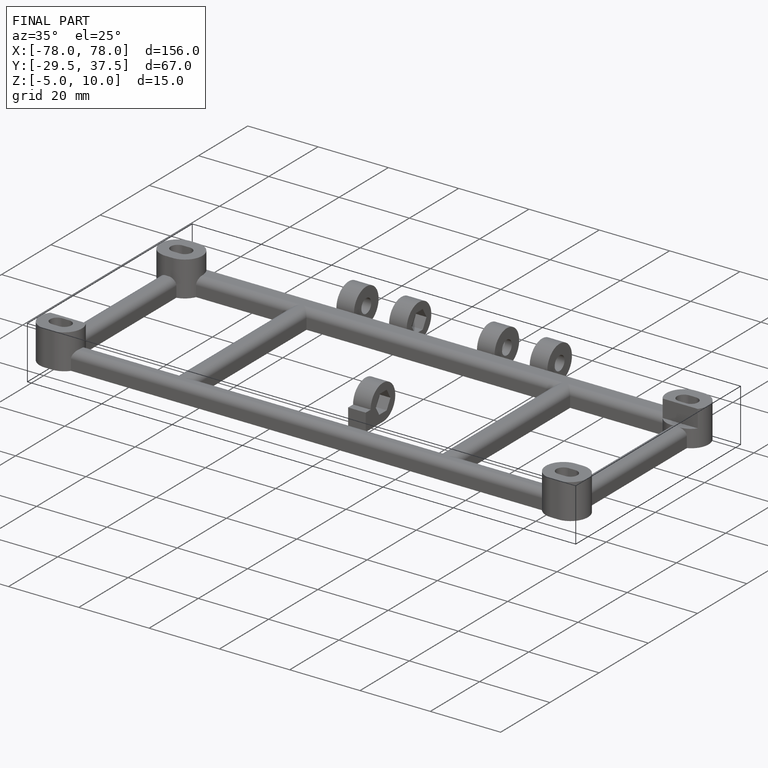
[diagram: finished part — iso view with bounding-box wireframe]
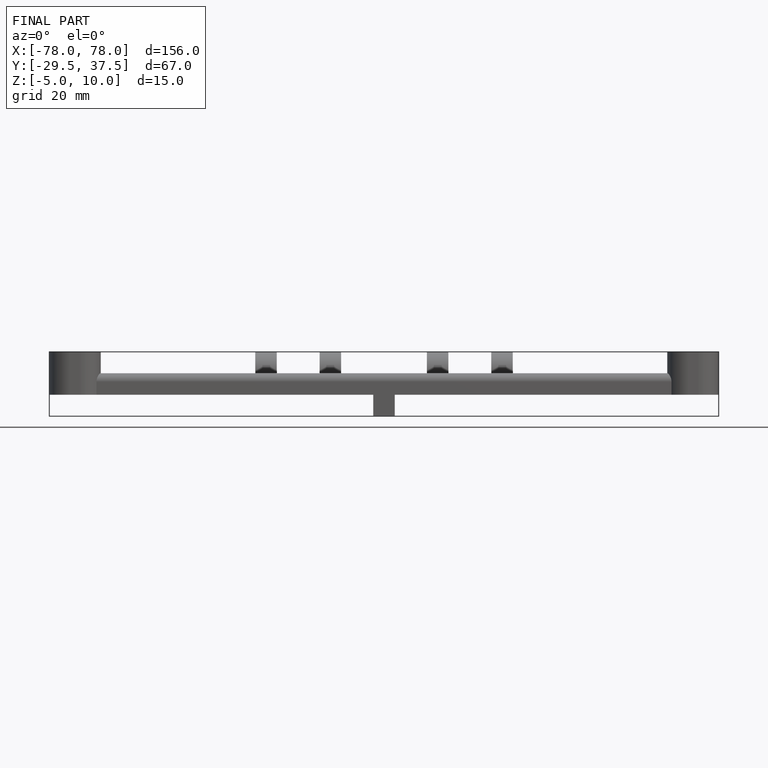
[diagram: finished part — front view with bounding-box wireframe]
